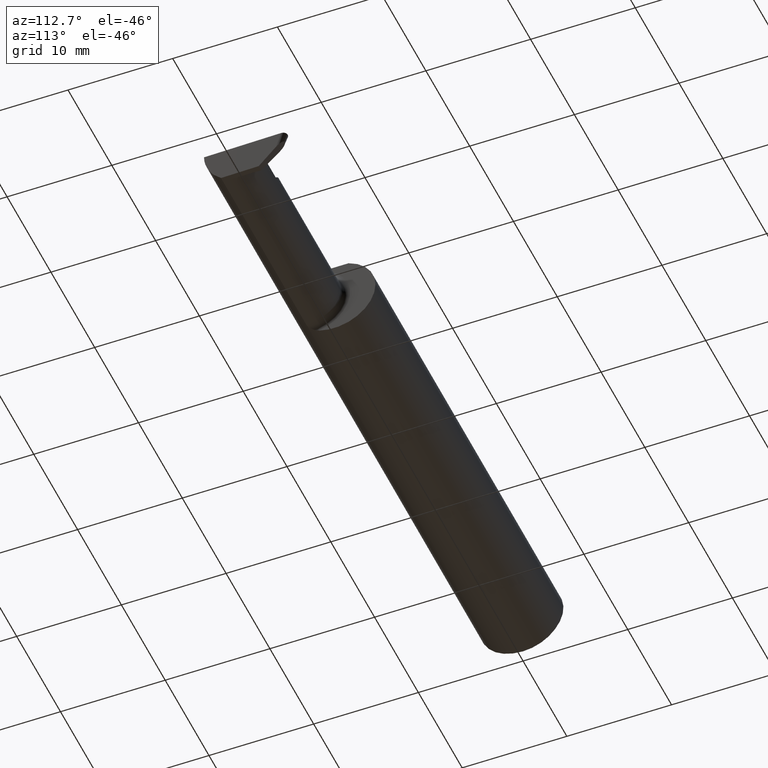
[diagram: clean part render]
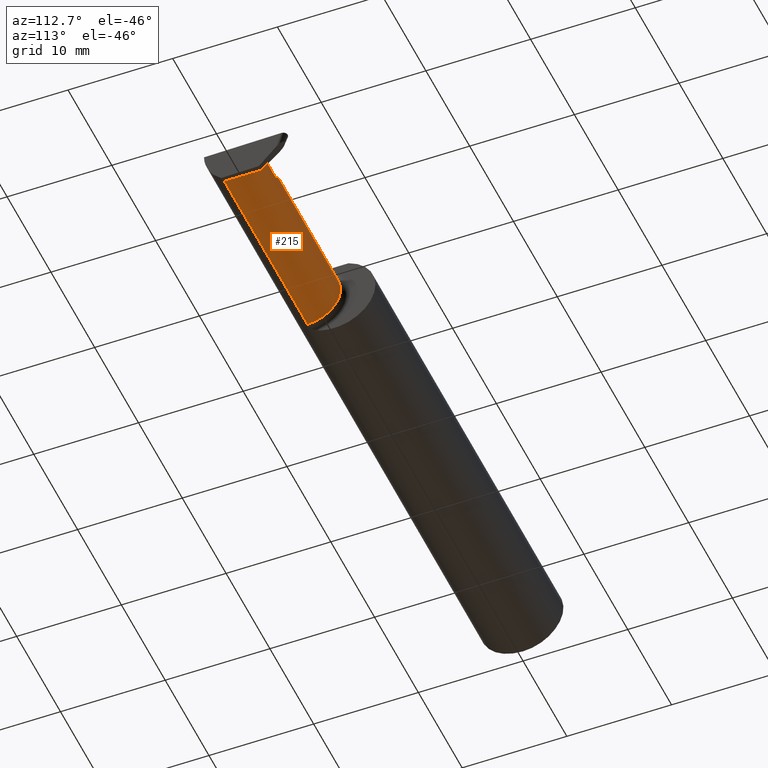
[diagram: same view with one face highlighted and labeled with its STEP entity id]
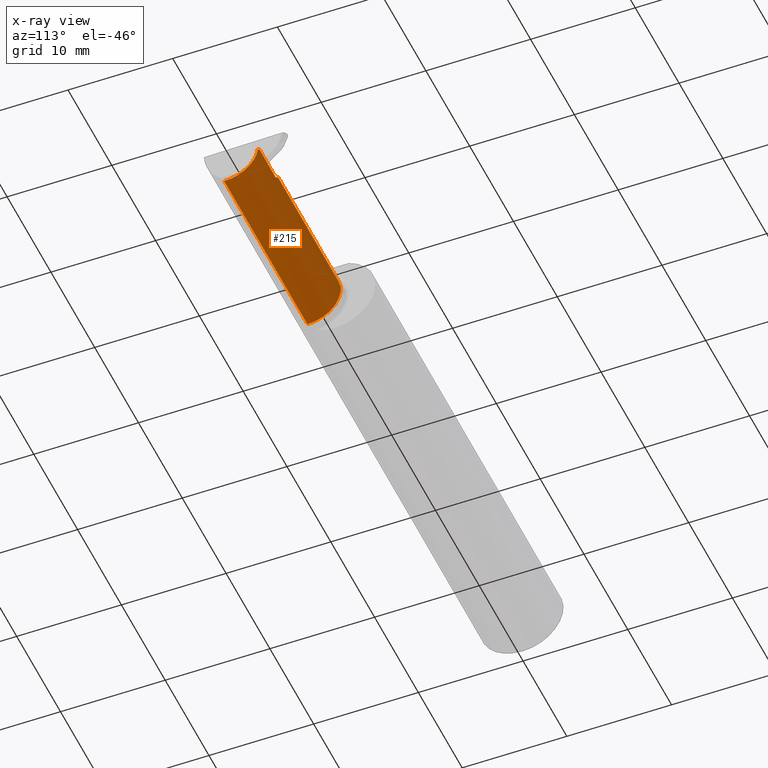
[diagram: x-ray of the same camera — body ghosted, the highlighted face saturated]
A machine part, auxiliary view. The second image highlights one B-rep face of the part: STEP entity #215.
The next image is the same camera in x-ray: the body ghosted, the highlighted face saturated — about 0% of this face is hidden behind the body in this view.
In plain terms, the highlighted cylindrical surface (edge-blend (fillet) strip) has radius 3.175 mm, axis along (-1, -0, -0).
Its self-contained STEP definition (entity closure, byte-faithful):
#15 = CARTESIAN_POINT ( 'NONE',  ( 2.460866666469919473, 0.03559550628247790810, -0.008719559218017721922 ) ) ;
#16 = CARTESIAN_POINT ( 'NONE',  ( 1.699999999999999956, -0.08909999999999999865, -0.1250000000000000278 ) ) ;
#24 = CARTESIAN_POINT ( 'NONE',  ( 2.472736521078112926, -0.01986741890188671936, -0.1250000000000000555 ) ) ;
#26 = CARTESIAN_POINT ( 'NONE',  ( 1.724999999999999867, -0.08910000000000001252, 0.1250000000000000278 ) ) ;
#39 = DIRECTION ( 'NONE',  ( 0.000000000000000000, 0.000000000000000000, 1.000000000000000000 ) ) ;
#40 = ORIENTED_EDGE ( 'NONE', *, *, #329, .T. ) ;
#56 = DIRECTION ( 'NONE',  ( -1.000000000000000000, -0.000000000000000000, -0.000000000000000000 ) ) ;
#117 = DIRECTION ( 'NONE',  ( 1.000000000000000000, 0.000000000000000000, 0.000000000000000000 ) ) ;
#121 = CARTESIAN_POINT ( 'NONE',  ( 1.699999999999999956, -0.08910000000000001252, 0.000000000000000000 ) ) ;
#136 = CARTESIAN_POINT ( 'NONE',  ( 2.461171160187441309, 0.03589999999999995278, 0.000000000000000000 ) ) ;
#173 = EDGE_CURVE ( 'NONE', #339, #431, #213, .T. ) ;
#180 = B_SPLINE_CURVE_WITH_KNOTS ( 'NONE', 3,
 ( #15, #695, #323, #136 ),
 .UNSPECIFIED., .F., .F.,
 ( 4, 4 ),
 ( 0.000000000000000000, 1.000000000000000000 ),
 .UNSPECIFIED. ) ;
#191 = EDGE_CURVE ( 'NONE', #362, #314, #245, .T. ) ;
#192 = VECTOR ( 'NONE', #356, 39.37007874015748143 ) ;
#213 =( BOUNDED_CURVE ( )  B_SPLINE_CURVE ( 3, ( #663, #601, #222, #660 ),
 .UNSPECIFIED., .F., .T. ) 
 B_SPLINE_CURVE_WITH_KNOTS ( ( 4, 4 ),
 ( 0.000000000000000000, 1.570796326794896336 ),
 .UNSPECIFIED. ) 
 CURVE ( )  GEOMETRIC_REPRESENTATION_ITEM ( )  RATIONAL_B_SPLINE_CURVE ( ( 1.000000000000000000, 0.8047378541243650485, 0.8047378541243650485, 1.000000000000000000 ) ) 
 REPRESENTATION_ITEM ( '' )  );
#215 = ADVANCED_FACE ( 'NONE', ( #803 ), #739, .T. ) ;
#222 = CARTESIAN_POINT ( 'NONE',  ( 2.236776695296636142, 0.03589999999999995972, 0.07322330470336316233 ) ) ;
#245 =( BOUNDED_CURVE ( )  B_SPLINE_CURVE ( 3, ( #335, #24, #714, #721 ),
 .UNSPECIFIED., .F., .F. ) 
 B_SPLINE_CURVE_WITH_KNOTS ( ( 4, 4 ),
 ( 3.176499238629679756, 4.677482395344787491 ),
 .UNSPECIFIED. ) 
 CURVE ( )  GEOMETRIC_REPRESENTATION_ITEM ( )  RATIONAL_B_SPLINE_CURVE ( ( 1.000000000000000000, 0.8209024677461173036, 0.8209024677461173036, 1.000000000000000000 ) ) 
 REPRESENTATION_ITEM ( '' )  );
#246 = CARTESIAN_POINT ( 'NONE',  ( 1.699999999999999956, 0.03590000000000000135, 9.797174393178831081E-17 ) ) ;
#253 = VERTEX_POINT ( 'NONE', #375 ) ;
#255 = EDGE_CURVE ( 'NONE', #518, #783, #625, .T. ) ;
#260 = ORIENTED_EDGE ( 'NONE', *, *, #741, .F. ) ;
#270 = AXIS2_PLACEMENT_3D ( 'NONE', #615, #561, #39 ) ;
#278 = VERTEX_POINT ( 'NONE', #544 ) ;
#283 = ORIENTED_EDGE ( 'NONE', *, *, #191, .F. ) ;
#303 = ORIENTED_EDGE ( 'NONE', *, *, #255, .F. ) ;
#304 = LINE ( 'NONE', #675, #192 ) ;
#314 = VERTEX_POINT ( 'NONE', #795 ) ;
#322 = VECTOR ( 'NONE', #630, 39.37007874015748143 ) ;
#323 = CARTESIAN_POINT ( 'NONE',  ( 2.461069662281600845, 0.03579850209415927353, -0.002906519739339236304 ) ) ;
#329 = EDGE_CURVE ( 'NONE', #362, #783, #389, .T. ) ;
#335 = CARTESIAN_POINT ( 'NONE',  ( 2.472822329339857461, -0.08910000000000001252, -0.1250000000000000278 ) ) ;
#339 = VERTEX_POINT ( 'NONE', #642 ) ;
#356 = DIRECTION ( 'NONE',  ( -1.000000000000000000, -0.000000000000000000, -0.000000000000000000 ) ) ;
#357 = ORIENTED_EDGE ( 'NONE', *, *, #659, .T. ) ;
#362 = VERTEX_POINT ( 'NONE', #380 ) ;
#375 = CARTESIAN_POINT ( 'NONE',  ( 2.460866666469919473, 0.03559550628247790810, -0.008719559218017721922 ) ) ;
#380 = CARTESIAN_POINT ( 'NONE',  ( 2.472822329339857461, -0.08910000000000001252, -0.1250000000000000278 ) ) ;
#389 = LINE ( 'NONE', #16, #322 ) ;
#399 = EDGE_LOOP ( 'NONE', ( #283, #40, #303, #706, #787, #357, #260, #730 ) ) ;
#429 = AXIS2_PLACEMENT_3D ( 'NONE', #121, #56, #433 ) ;
#431 = VERTEX_POINT ( 'NONE', #637 ) ;
#433 = DIRECTION ( 'NONE',  ( 0.000000000000000000, 0.000000000000000000, 1.000000000000000000 ) ) ;
#473 = LINE ( 'NONE', #646, #562 ) ;
#481 = LINE ( 'NONE', #246, #666 ) ;
#513 = EDGE_CURVE ( 'NONE', #314, #253, #473, .T. ) ;
#518 = VERTEX_POINT ( 'NONE', #26 ) ;
#544 = CARTESIAN_POINT ( 'NONE',  ( 2.461171160187441309, 0.03589999999999995278, 0.000000000000000000 ) ) ;
#561 = DIRECTION ( 'NONE',  ( -1.000000000000000000, -0.000000000000000000, -0.000000000000000000 ) ) ;
#562 = VECTOR ( 'NONE', #785, 39.37007874015748143 ) ;
#601 = CARTESIAN_POINT ( 'NONE',  ( 2.184999999999998277, -0.01587669529663690224, 0.1250000000000000555 ) ) ;
#615 = CARTESIAN_POINT ( 'NONE',  ( 1.724999999999999867, -0.08910000000000001252, 0.000000000000000000 ) ) ;
#616 = EDGE_CURVE ( 'NONE', #339, #518, #304, .T. ) ;
#624 = CARTESIAN_POINT ( 'NONE',  ( 1.724999999999999867, -0.08909999999999999865, -0.1250000000000000278 ) ) ;
#625 = CIRCLE ( 'NONE', #270, 0.1250000000000000278 ) ;
#630 = DIRECTION ( 'NONE',  ( -1.000000000000000000, -0.000000000000000000, -0.000000000000000000 ) ) ;
#637 = CARTESIAN_POINT ( 'NONE',  ( 2.310000000000000053, 0.03590000000000000135, 9.797174393178831081E-17 ) ) ;
#642 = CARTESIAN_POINT ( 'NONE',  ( 2.184999999999998721, -0.08910000000000001252, 0.1250000000000000278 ) ) ;
#646 = CARTESIAN_POINT ( 'NONE',  ( 1.699999999999999956, 0.03559550628247792198, -0.008719559218017548449 ) ) ;
#659 = EDGE_CURVE ( 'NONE', #431, #278, #481, .T. ) ;
#660 = CARTESIAN_POINT ( 'NONE',  ( 2.310000000000000053, 0.03590000000000000135, 9.797174393178831081E-17 ) ) ;
#663 = CARTESIAN_POINT ( 'NONE',  ( 2.184999999999998721, -0.08910000000000001252, 0.1250000000000000278 ) ) ;
#666 = VECTOR ( 'NONE', #117, 39.37007874015748143 ) ;
#675 = CARTESIAN_POINT ( 'NONE',  ( 1.699999999999999956, -0.08910000000000001252, 0.1250000000000000278 ) ) ;
#695 = CARTESIAN_POINT ( 'NONE',  ( 2.460968164375760381, 0.03569700418831858735, -0.005813039478678472607 ) ) ;
#706 = ORIENTED_EDGE ( 'NONE', *, *, #616, .F. ) ;
#714 = CARTESIAN_POINT ( 'NONE',  ( 2.470997940024109774, 0.03076608555686825494, -0.07778349322819322342 ) ) ;
#721 = CARTESIAN_POINT ( 'NONE',  ( 2.468540712907033807, 0.03559550628247792198, -0.008719559218017548449 ) ) ;
#730 = ORIENTED_EDGE ( 'NONE', *, *, #513, .F. ) ;
#739 = CYLINDRICAL_SURFACE ( 'NONE', #429, 0.1250000000000000278 ) ;
#741 = EDGE_CURVE ( 'NONE', #253, #278, #180, .T. ) ;
#783 = VERTEX_POINT ( 'NONE', #624 ) ;
#785 = DIRECTION ( 'NONE',  ( -1.000000000000000000, -0.000000000000000000, -0.000000000000000000 ) ) ;
#787 = ORIENTED_EDGE ( 'NONE', *, *, #173, .T. ) ;
#795 = CARTESIAN_POINT ( 'NONE',  ( 2.468540712907033807, 0.03559550628247792198, -0.008719559218017548449 ) ) ;
#803 = FACE_OUTER_BOUND ( 'NONE', #399, .T. ) ;